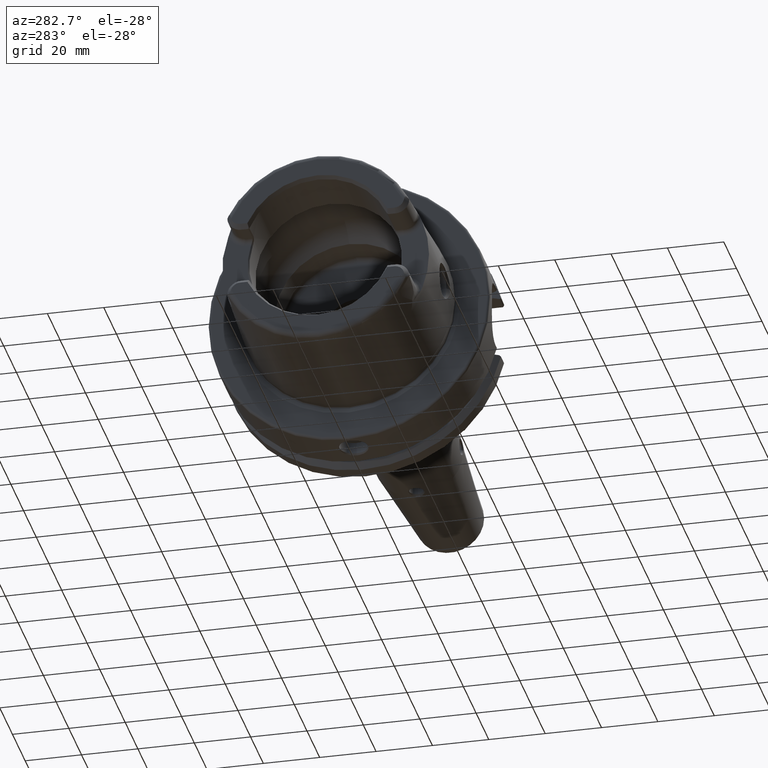
[diagram: clean part render]
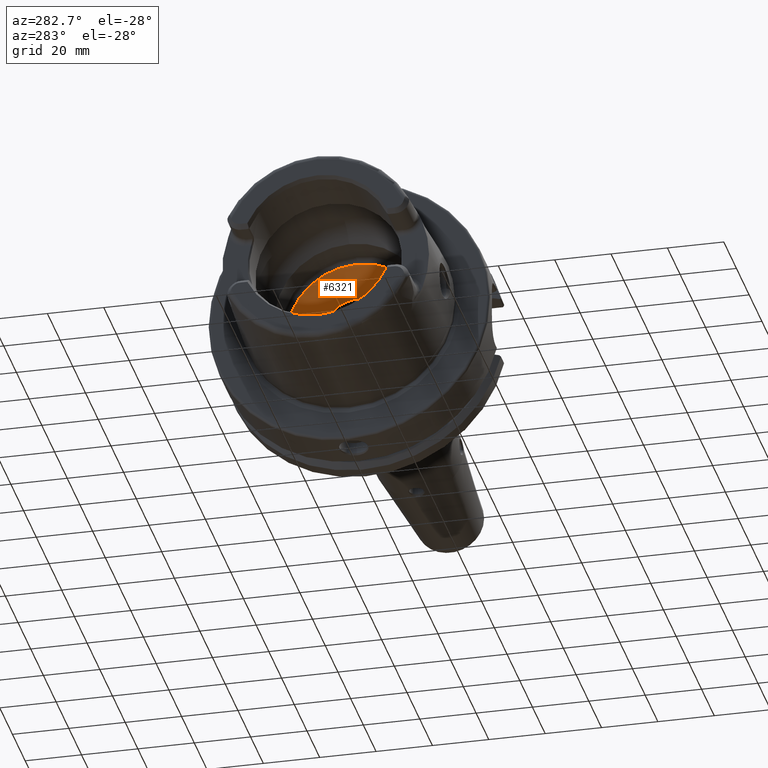
[diagram: same view with one face highlighted and labeled with its STEP entity id]
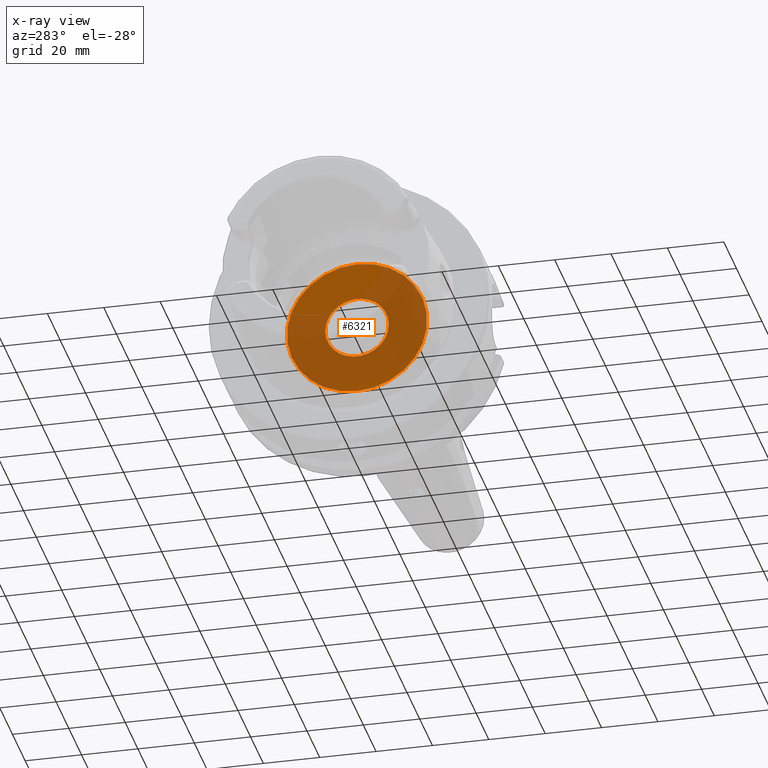
[diagram: x-ray of the same camera — body ghosted, the highlighted face saturated]
A machine part, auxiliary view. The second image highlights one B-rep face of the part: STEP entity #6321.
The next image is the same camera in x-ray: the body ghosted, the highlighted face saturated — about 72% of this face is hidden behind the body in this view.
In plain terms, the highlighted planar face has unit normal (1, 0, 0).
Its self-contained STEP definition (entity closure, byte-faithful):
#2690=CARTESIAN_POINT('',(1.25E1,0.E0,0.E0));
#2691=DIRECTION('',(-1.E0,0.E0,0.E0));
#2692=DIRECTION('',(0.E0,1.E0,0.E0));
#2693=AXIS2_PLACEMENT_3D('',#2690,#2691,#2692);
#2695=CARTESIAN_POINT('',(1.25E1,0.E0,0.E0));
#2696=DIRECTION('',(-1.E0,0.E0,0.E0));
#2697=DIRECTION('',(0.E0,-1.E0,0.E0));
#2698=AXIS2_PLACEMENT_3D('',#2695,#2696,#2697);
#2705=CARTESIAN_POINT('',(1.25E1,0.E0,0.E0));
#2706=DIRECTION('',(-1.E0,0.E0,0.E0));
#2707=DIRECTION('',(0.E0,0.E0,-1.E0));
#2708=AXIS2_PLACEMENT_3D('',#2705,#2706,#2707);
#2715=CARTESIAN_POINT('',(1.25E1,0.E0,0.E0));
#2716=DIRECTION('',(1.E0,0.E0,0.E0));
#2717=DIRECTION('',(0.E0,0.E0,-1.E0));
#2718=AXIS2_PLACEMENT_3D('',#2715,#2716,#2717);
#2821=CARTESIAN_POINT('',(1.25E1,0.E0,-2.49E1));
#2822=CARTESIAN_POINT('',(1.25E1,0.E0,2.49E1));
#2823=VERTEX_POINT('',#2821);
#2824=VERTEX_POINT('',#2822);
#2829=CARTESIAN_POINT('',(1.25E1,1.125E1,0.E0));
#2830=CARTESIAN_POINT('',(1.25E1,-1.125E1,0.E0));
#2831=VERTEX_POINT('',#2829);
#2832=VERTEX_POINT('',#2830);
#6306=CARTESIAN_POINT('',(1.25E1,0.E0,0.E0));
#6307=DIRECTION('',(1.E0,0.E0,0.E0));
#6308=DIRECTION('',(0.E0,0.E0,1.E0));
#6309=AXIS2_PLACEMENT_3D('',#6306,#6307,#6308);
#6310=PLANE('',#6309);
#6312=ORIENTED_EDGE('',*,*,#6311,.F.);
#6314=ORIENTED_EDGE('',*,*,#6313,.T.);
#6315=EDGE_LOOP('',(#6312,#6314));
#6316=FACE_OUTER_BOUND('',#6315,.F.);
#6317=ORIENTED_EDGE('',*,*,#6286,.T.);
#6318=ORIENTED_EDGE('',*,*,#6300,.T.);
#6319=EDGE_LOOP('',(#6317,#6318));
#6320=FACE_BOUND('',#6319,.F.);
#6321=ADVANCED_FACE('',(#6316,#6320),#6310,.F.);
#2694=CIRCLE('',#2693,1.125E1);
#2699=CIRCLE('',#2698,1.125E1);
#2709=CIRCLE('',#2708,2.49E1);
#2719=CIRCLE('',#2718,2.49E1);
#6286=EDGE_CURVE('',#2831,#2832,#2694,.T.);
#6300=EDGE_CURVE('',#2832,#2831,#2699,.T.);
#6311=EDGE_CURVE('',#2823,#2824,#2709,.T.);
#6313=EDGE_CURVE('',#2823,#2824,#2719,.T.);